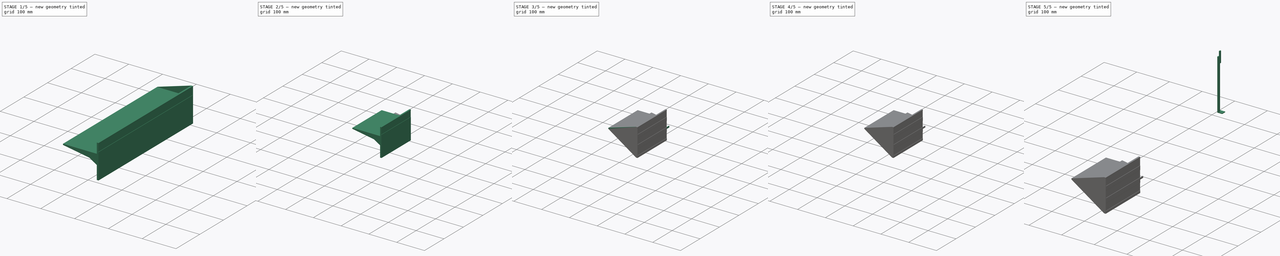
[diagram: build sequence overview — one tinted view per stage of 5, left to right]
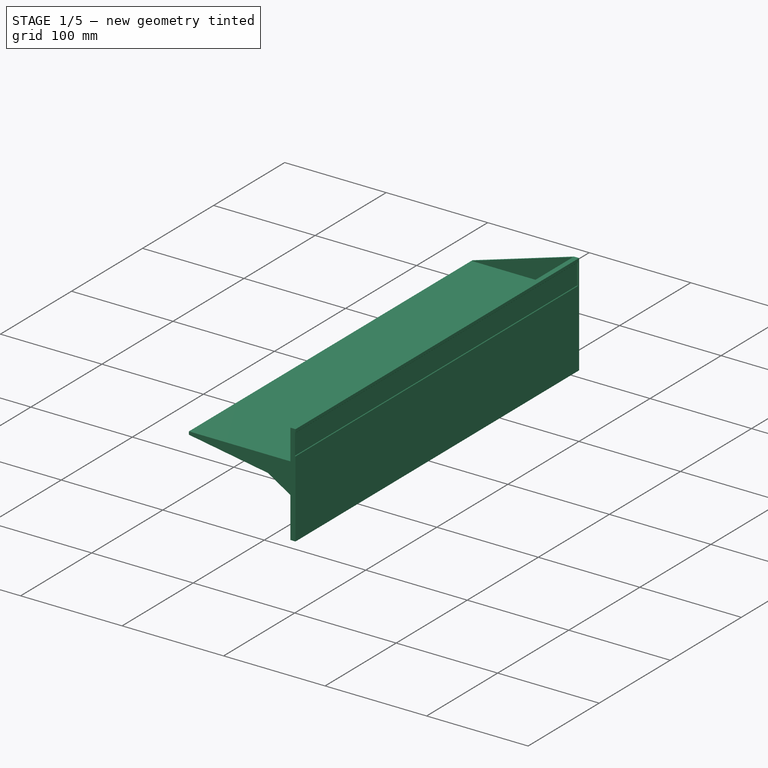
[diagram: stage 1 of 5 — iso view after this stage's code; geometry added in this stage tinted green]
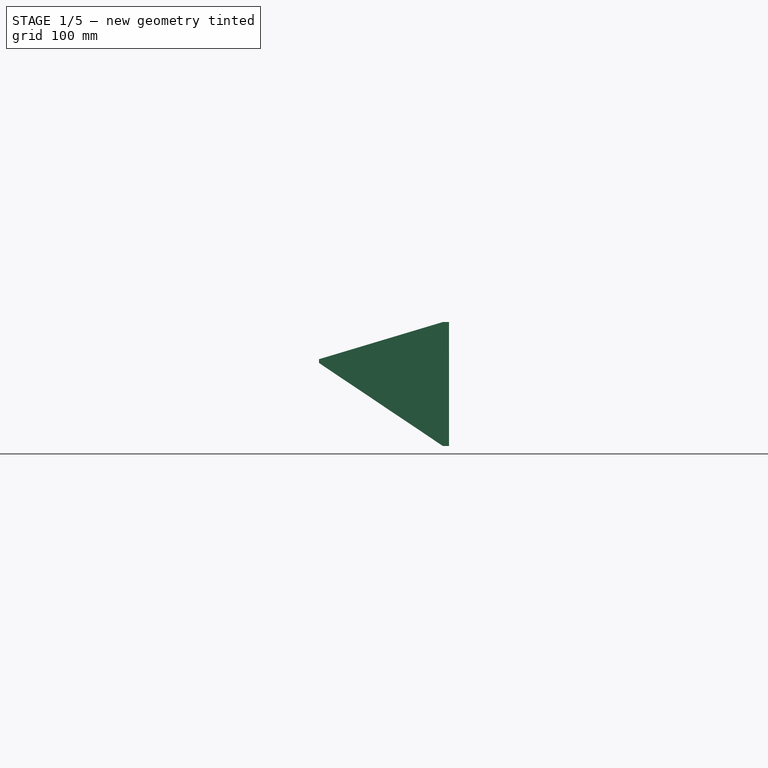
[diagram: stage 1 of 5 — front view after this stage's code; geometry added in this stage tinted green]
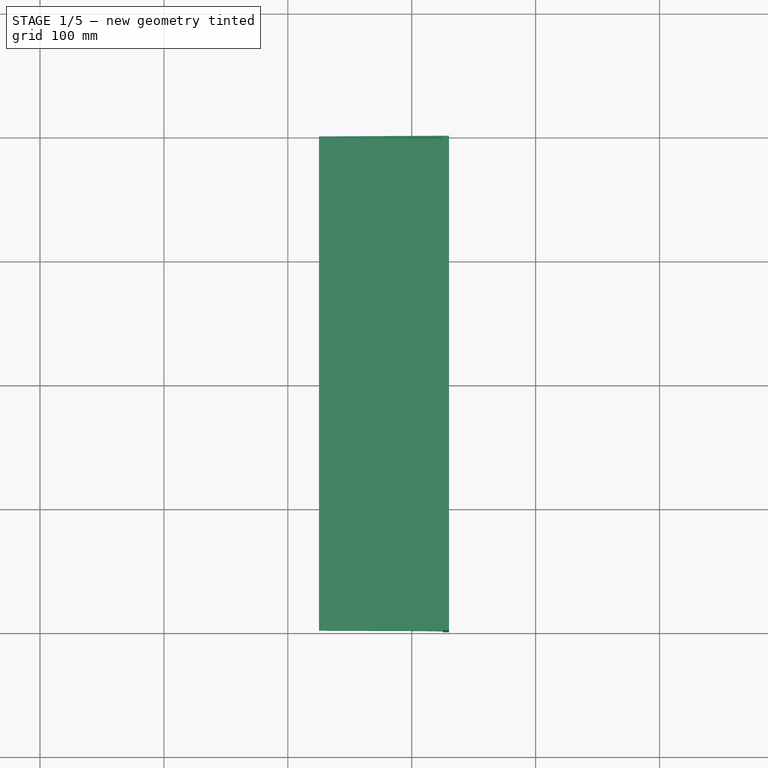
[diagram: stage 1 of 5 — top view after this stage's code; geometry added in this stage tinted green]
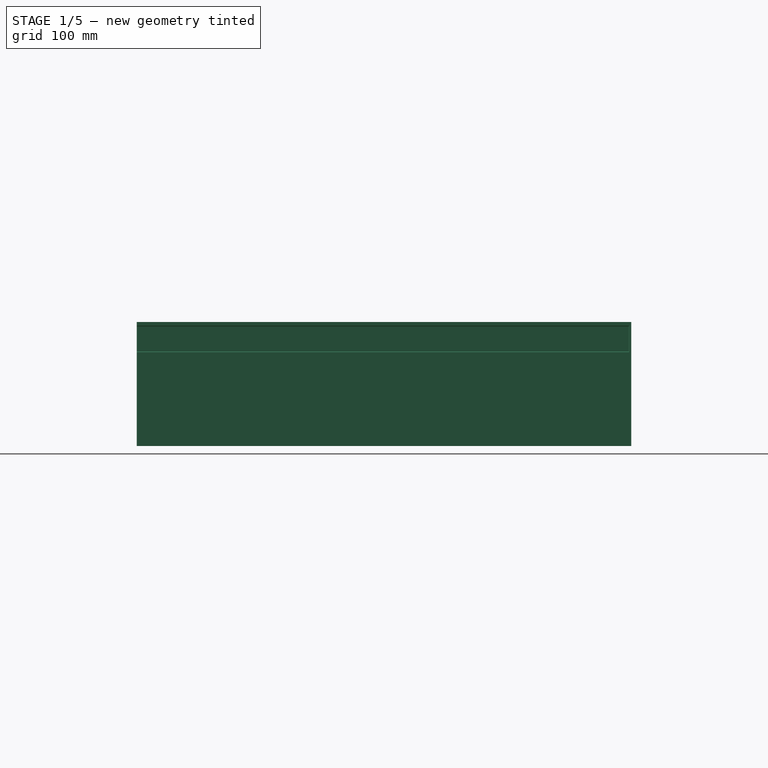
[diagram: stage 1 of 5 — right view after this stage's code; geometry added in this stage tinted green]
FCSTD DOCUMENT  (FreeCAD 1.1R40928 (Git))
Label: Полка
License: All rights reserved
LicenseURL: https://en.wikipedia.org/wiki/All_rights_reserved
objects: Sketcher::SketchObject×10, PartDesign::Pad×10, PartDesign::Chamfer×4, App::Point×3, PartDesign::Body×3, PartDesign::SubShapeBinder×1, Part::DatumPlane×1, PartDesign::Pocket×1, Measure::MeasureDistance×1, App::DocumentObjectGroup×1
note: 69 computed .brp shape members not serialized (recipe doc carries the construction recipe); baked Part::Feature solids carry a one-line shape summary decoded from their .brp

FEATURE [App::Point] Origin001  label="Начало координат"
  Role = Origin
FEATURE [Sketcher::SketchObject] Sketch
  ArcFitTolerance = 1e-06
  AttachmentSupport = -> [XZ_Plane]
  ExternalTypes = [0]
  FullyConstrained = false
  MakeInternals = false
  MapMode = 5
  Placement = pos=(0,0,0) rot=(1,0,0;1.5708rad)
  sketch-geometry (15):
    g0: LineSegment StartX=-74.8917 StartY=6.91952 StartZ=0 EndX=-74.8917 EndY=3.91952 EndZ=0
    g1: LineSegment StartX=25.1083 StartY=-63.0805 StartZ=0 EndX=30.1083 EndY=-63.0805 EndZ=0
    g2: LineSegment StartX=30.1083 StartY=-63.0805 StartZ=0 EndX=30.1083 EndY=12.6695 EndZ=0
    g3: LineSegment StartX=25.1083 StartY=36.9195 StartZ=0 EndX=25.1083 EndY=6.91952 EndZ=0
    g4: LineSegment StartX=25.1083 StartY=6.91952 StartZ=0 EndX=-74.8917 EndY=6.91952 EndZ=0
    g5: LineSegment StartX=25.1083 StartY=36.9195 StartZ=0 EndX=30.1083 EndY=36.9195 EndZ=0
    g6: LineSegment StartX=3.14686 StartY=-9.34703 StartZ=0 EndX=25.1083 EndY=-23.0805 EndZ=0
    g7: LineSegment [constr] StartX=25.1083 StartY=-13.0805 StartZ=0 EndX=3.14686 EndY=-9.34703 EndZ=0
    g8: LineSegment StartX=3.14686 StartY=-9.34703 StartZ=0 EndX=-74.8917 EndY=3.91952 EndZ=0
    g9: LineSegment [constr] StartX=25.1083 StartY=-13.0805 StartZ=0 EndX=25.1083 EndY=-23.0805 EndZ=0
    g10: LineSegment StartX=25.1083 StartY=-23.0805 StartZ=0 EndX=25.1083 EndY=-63.0805 EndZ=0
    g11: LineSegment StartX=29.6083 StartY=33.4195 StartZ=0 EndX=30.1083 EndY=33.9195 EndZ=0
    g12: LineSegment StartX=29.6083 StartY=33.4195 StartZ=0 EndX=29.6083 EndY=13.1695 EndZ=0
    g13: LineSegment StartX=29.6083 StartY=13.1695 StartZ=0 EndX=30.1083 EndY=12.6695 EndZ=0
    g14: LineSegment StartX=30.1083 StartY=33.9195 StartZ=0 EndX=30.1083 EndY=36.9195 EndZ=0
  constraints (41):
    c: Coincident(g10,g1)
    c: Coincident(g1,g2)
    c: Coincident(g3,g4)
    c: Coincident(g4,g0)
    c: Horizontal(g4)
    c: Vertical(g0)
    c: Vertical(g3)
    c: Horizontal(g1)
    c: Vertical(g9,g3)
    c: DistanceY(g0,g0) = 3
    c: DistanceX(g1,g1) = 5
    c: DistanceY(g9,g3) = 20
    c: Coincident(g7,g9)
    c: Coincident(g8,g0)
    c: DistanceX(g4,g4) = 100
    c: Coincident(g5,g3)
    c: Coincident(g14,g5)
    c: Equal(g5,g1)
    c: Horizontal(g5)
    c: DistanceY(g10,g9) = 50
    c: Distance(g3,g3) = 30
    c: Coincident(g7,g8)
    c: Coincident(g9,g10)
    c: Vertical(g9)
    c: Vertical(g10)
    c: Coincident(g7,g6)
    c: Coincident(g9,g6)
    c: DistanceY(g6,g7) = 10
    c: Parallel(g7,g8)
    c: Coincident(g11,g12)
    c: Coincident(g12,g13)
    c: DistanceX(g13,g13) = 0.5
    c: Angle(g13,g2) = 2.35619
    c: Vertical(g12)
    c: Angle(g2,g11) = 2.35619
    c: Coincident(g11,g14)
    c: Coincident(g13,g2)
    c: Vertical(g14)
    c: Vertical(g11,g2)
    c: DistanceY(g2,g11) = 21.25
    c: DistanceY(g14,g14) = 3
FEATURE [PartDesign::Pad] Pad
  Direction = (0,-1,0)
  Length = 399
  Length2 = 10
  Placement = pos=(0,0,0) rot=(1,0,0;1.5708rad)
  Profile = -> Sketch
  ReferenceAxis = -> Sketch [N_Axis]
  Refine = true
  Suppressed = false
  Type = 0
FEATURE [Sketcher::SketchObject] Sketch001
  ArcFitTolerance = 1e-06
  AttachmentSupport = -> [Pad]
  ExternalGeometry = -> [Pad]
  ExternalTypes = [0,0,0,0,0,0]
  FullyConstrained = true
  MakeInternals = false
  MapMode = 5
  Placement = pos=(0,-1.4e-15,0) rot=(-1,0,0;1.5708rad)
  sketch-geometry (6):
    g0: LineSegment StartX=-74.8917 StartY=-3.91952 StartZ=0 EndX=25.1083 EndY=63.0805 EndZ=0
    g1: LineSegment StartX=30.1083 StartY=63.0805 StartZ=0 EndX=30.1083 EndY=-36.9195 EndZ=0
    g2: LineSegment StartX=25.1083 StartY=-36.9195 StartZ=0 EndX=-74.8917 EndY=-6.91952 EndZ=0
    g3: LineSegment StartX=-74.8917 StartY=-6.91952 StartZ=0 EndX=-74.8917 EndY=-3.91952 EndZ=0
    g4: LineSegment StartX=25.1083 StartY=-36.9195 StartZ=0 EndX=30.1083 EndY=-36.9195 EndZ=0
    g5: LineSegment StartX=25.1083 StartY=63.0805 StartZ=0 EndX=30.1083 EndY=63.0805 EndZ=0
  constraints (12):
    c: Coincident(g2,g3)
    c: Coincident(g3,g0)
    c: Coincident(g2,g-4)
    c: Coincident(g-3,g0)
    c: Coincident(g1,g-8)
    c: Coincident(g-6,g2)
    c: Coincident(g4,g2)
    c: Coincident(g4,g1)
    c: Coincident(g1,g-7)
    c: Coincident(g-5,g0)
    c: Coincident(g5,g0)
    c: Coincident(g5,g1)
FEATURE [PartDesign::Pad] Pad001
  BaseFeature = -> Pad
  Direction = (0,1,2e-16)
  Length = 1.5
  Length2 = 10
  Placement = pos=(0,0,0) rot=(1,0,0;1.5708rad)
  Profile = -> Sketch001
  ReferenceAxis = -> Sketch001 [N_Axis]
  Refine = true
  Reversed = true
  Suppressed = false
  Type = 0
FEATURE [PartDesign::Chamfer] Chamfer
  Angle = 45
  Base = -> Pad001 [Edge2]
  BaseFeature = -> Pad001
  ChamferType = 0
  FlipDirection = false
  Placement = pos=(0,0,0) rot=(1,0,0;1.5708rad)
  Refine = true
  Size = 0.5
  Size2 = 1
  SupportTransform = false
  Suppressed = false
  UseAllEdges = false
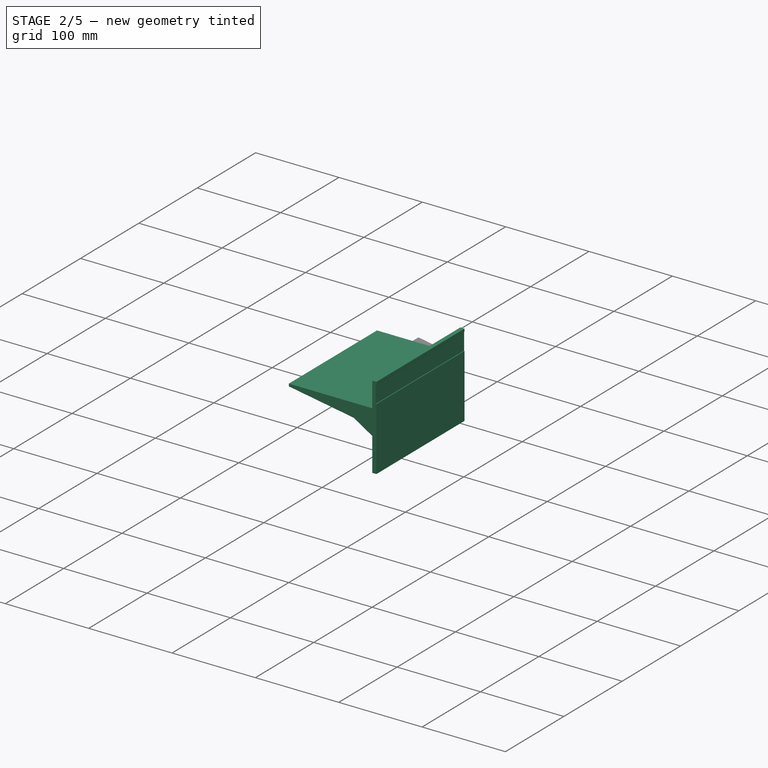
[diagram: stage 2 of 5 — iso view after this stage's code; geometry added in this stage tinted green]
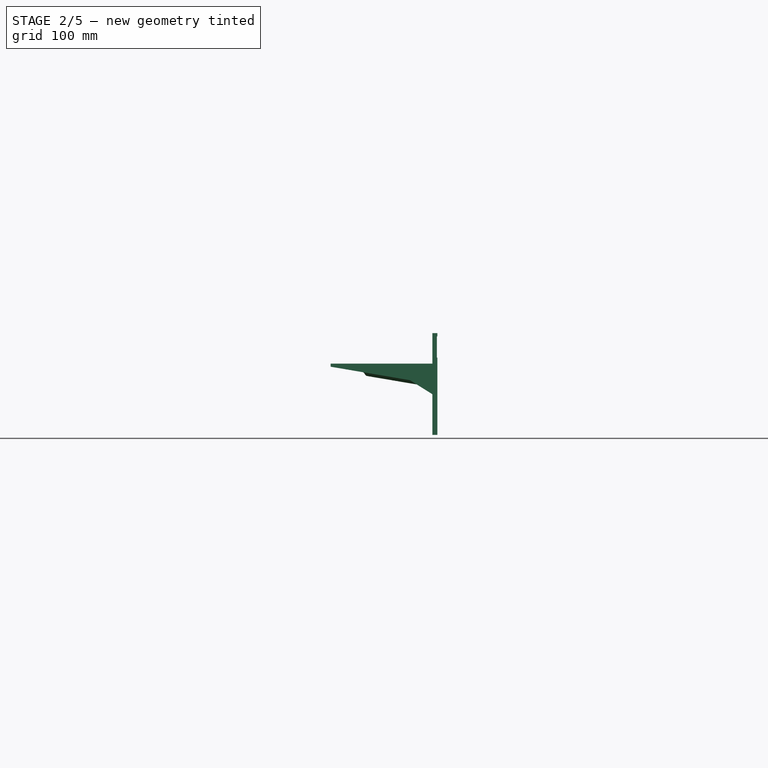
[diagram: stage 2 of 5 — front view after this stage's code; geometry added in this stage tinted green]
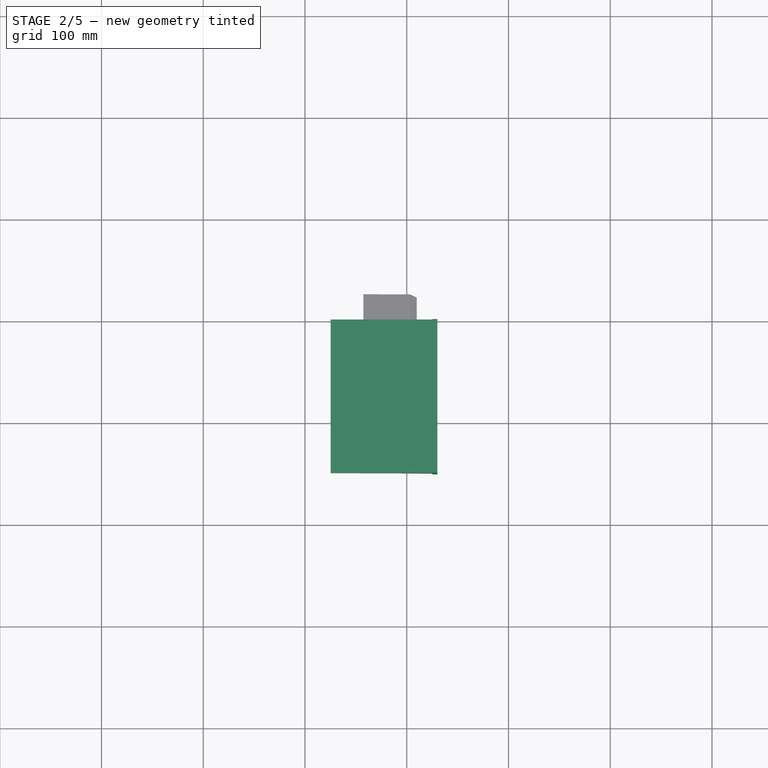
[diagram: stage 2 of 5 — top view after this stage's code; geometry added in this stage tinted green]
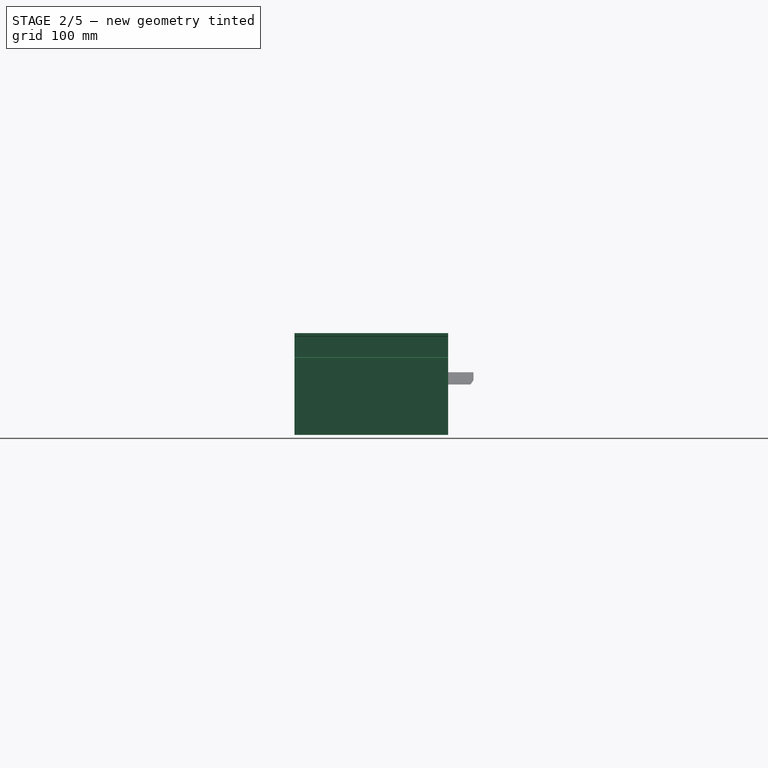
[diagram: stage 2 of 5 — right view after this stage's code; geometry added in this stage tinted green]
FEATURE [PartDesign::Body] Body  label="Тело"
  AllowCompound = false
  Group = -> [Sketch,Pad,Sketch001,Pad001,Chamfer]
  Origin = -> Origin
  Tip = -> Chamfer
FEATURE [App::Point] Origin003  label="Начало координат002"
  Role = Origin
FEATURE [PartDesign::SubShapeBinder] Binder
  BindCopyOnChange = 0
  BindMode = 0
  ClaimChildren = false
  Context = -> Body001 [Binder.]
  Fuse = false
  MakeFace = true
  OffsetFill = false
  OffsetIntersection = false
  OffsetJoinType = 0
  OffsetOpenResult = false
  PartialLoad = false
  Refine = true
  Relative = true
  Support = -> [Body[Chamfer.Face7]]
  _Version = 2
FEATURE [PartDesign::Pad] Pad002
  Direction = (0,-1,0)
  Length = 151
  Length2 = 10
  Profile = -> Binder
  Refine = true
  Suppressed = false
  Type = 0
FEATURE [Part::DatumPlane] DatumPlane
  AttachmentSupport = -> [Pad002]
  MapMode = 5
  Placement = pos=(0,-399,0) rot=(0,0.707107,0.707107;3.14159rad)
FEATURE [Sketcher::SketchObject] Sketch002
  ArcFitTolerance = 1e-06
  AttachmentSupport = -> [DatumPlane]
  ExternalGeometry = -> [Pad002]
  ExternalTypes = [1,0]
  FullyConstrained = false
  MakeInternals = false
  MapMode = 5
  Placement = pos=(0,-399,0) rot=(0,0.707107,0.707107;3.14159rad)
  sketch-geometry (4):
    g0: LineSegment StartX=-3.14686 StartY=-9.34703 StartZ=0 EndX=-9.82982 EndY=-13.5262 EndZ=0
    g1: LineSegment StartX=-9.82982 StartY=-13.5262 StartZ=0 EndX=42.7003 EndY=-4.59605 EndZ=0
    g2: LineSegment StartX=42.7003 StartY=-4.59605 StartZ=0 EndX=42.7003 EndY=-1.55301 EndZ=0
    g3: LineSegment StartX=42.7003 StartY=-1.55301 StartZ=0 EndX=-3.14686 EndY=-9.34703 EndZ=0
  constraints (10):
    c: Coincident(g-4,g0)
    c: PointOnObject(g0,g-4)
    c: Coincident(g0,g1)
    c: Coincident(g1,g2)
    c: Vertical(g2)
    c: Coincident(g3,g0)
    c: Parallel(g1,g3)
    c: Coincident(g2,g3)
    c: PointOnObject(g2,g-3)
    c: Distance(g3,g1) = 3
FEATURE [PartDesign::Pad] Pad003
  BaseFeature = -> Pad002
  Direction = (0,1,-2e-16)
  Length = 25
  Length2 = 15
  Profile = -> Sketch002
  ReferenceAxis = -> Sketch002 [N_Axis]
  Refine = true
  Suppressed = false
  Type = 4
FEATURE [PartDesign::Chamfer] Chamfer002
  Angle = 45
  Base = -> Pad003 [Edge51,Edge55,Edge53]
  BaseFeature = -> Pad003
  ChamferType = 0
  FlipDirection = false
  Refine = true
  Size = 2.99
  Size2 = 1
  SupportTransform = false
  Suppressed = false
  UseAllEdges = false
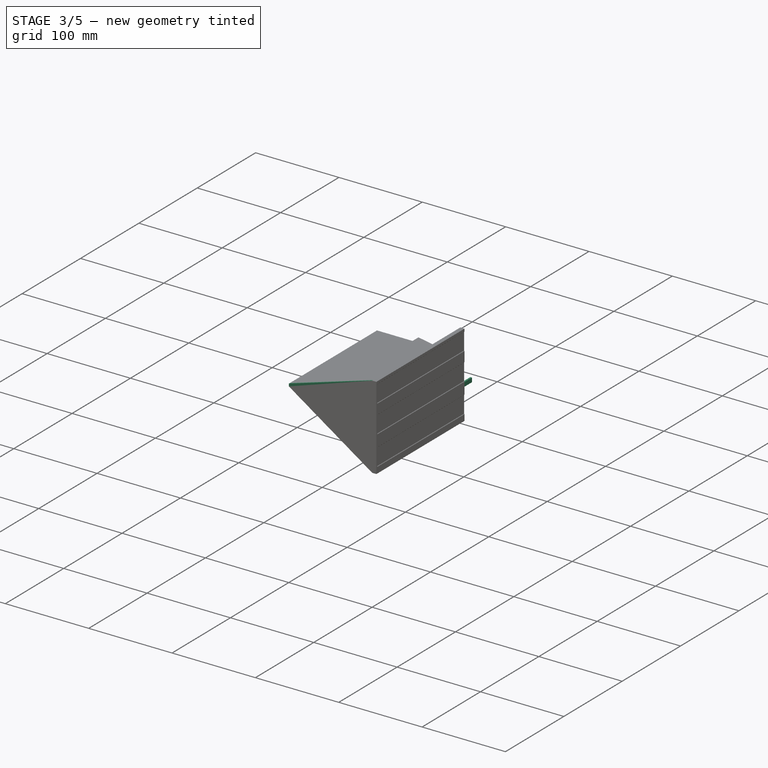
[diagram: stage 3 of 5 — iso view after this stage's code; geometry added in this stage tinted green]
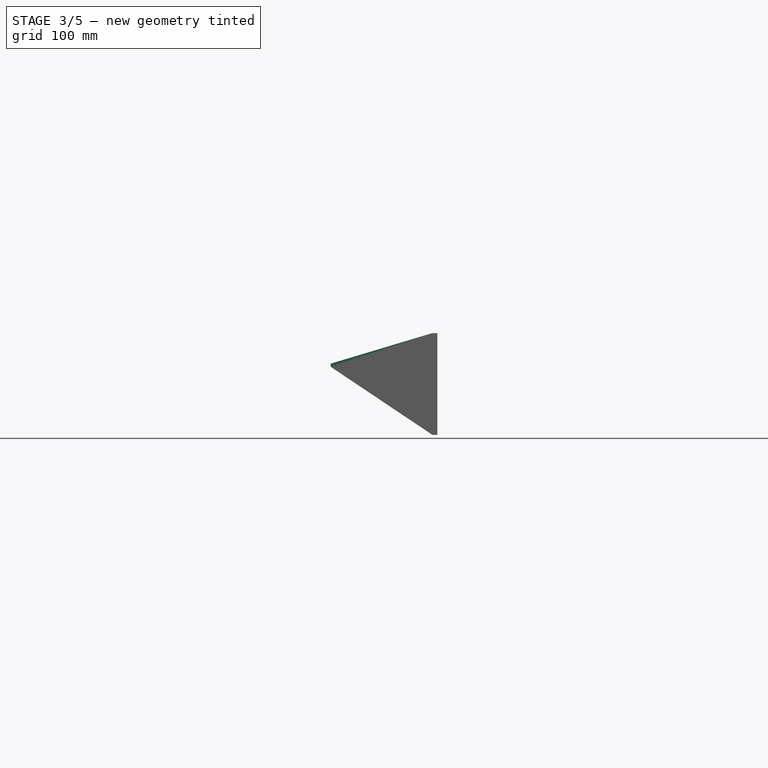
[diagram: stage 3 of 5 — front view after this stage's code; geometry added in this stage tinted green]
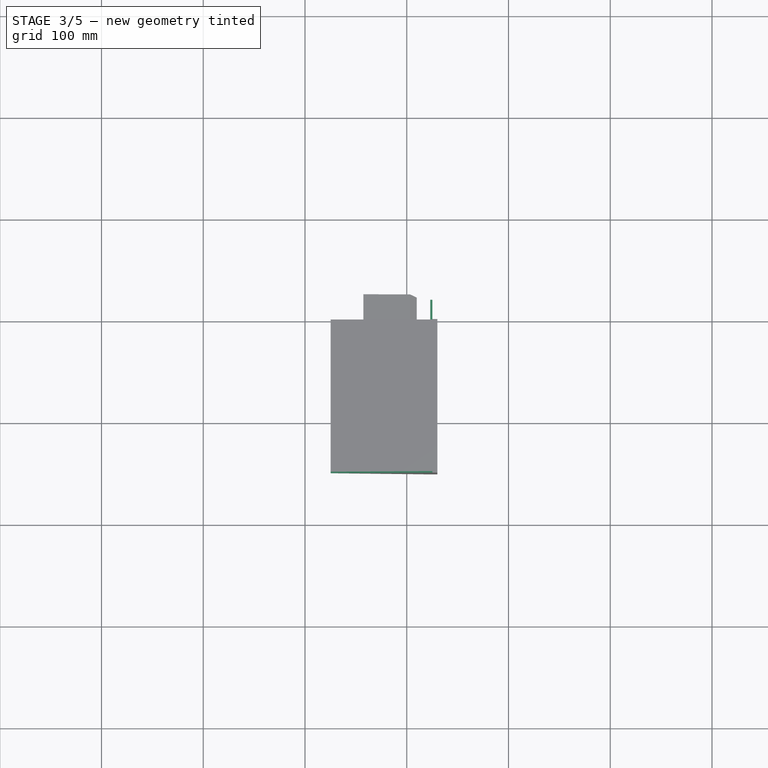
[diagram: stage 3 of 5 — top view after this stage's code; geometry added in this stage tinted green]
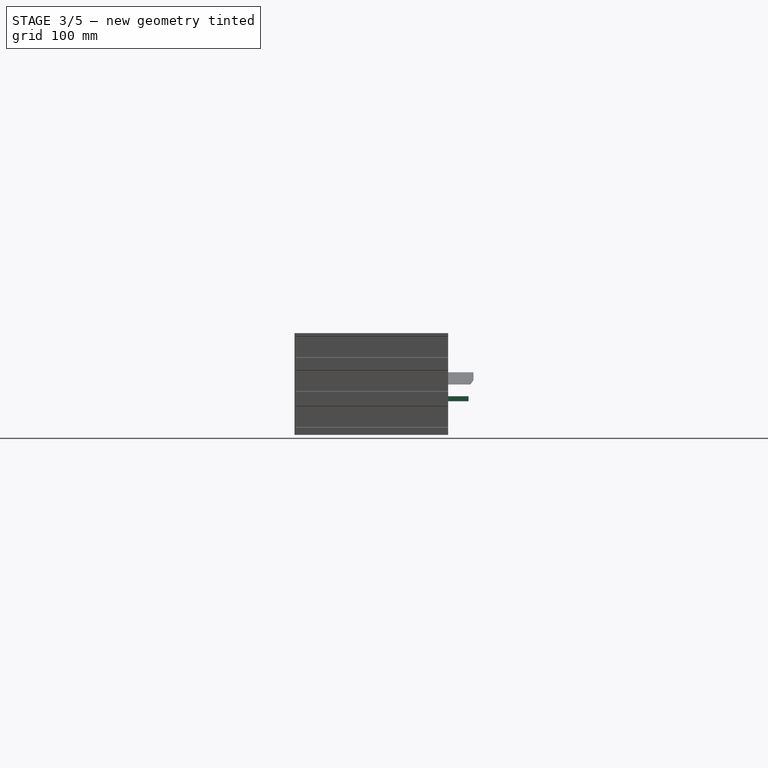
[diagram: stage 3 of 5 — right view after this stage's code; geometry added in this stage tinted green]
FEATURE [Sketcher::SketchObject] Sketch005
  ArcFitTolerance = 1e-06
  AttachmentSupport = -> [Chamfer002]
  ExternalGeometry = -> [Chamfer002]
  ExternalTypes = [0,0,0,0]
  FullyConstrained = true
  MakeInternals = false
  MapMode = 5
  Placement = pos=(0,-550,0) rot=(1,0,0;1.5708rad)
  sketch-geometry (3):
    g0: LineSegment StartX=-74.8917 StartY=6.91952 StartZ=0 EndX=25.1083 EndY=36.9195 EndZ=0
    g1: LineSegment StartX=30.1083 StartY=33.9195 StartZ=0 EndX=30.1083 EndY=-63.0805 EndZ=0
    g2: LineSegment StartX=25.1083 StartY=-63.0805 StartZ=0 EndX=-74.8917 EndY=3.91952 EndZ=0
  constraints (6):
    c: Coincident(g-5,g0)
    c: Coincident(g0,g-6)
    c: Coincident(g-3,g1)
    c: Coincident(g1,g-4)
    c: Coincident(g-4,g2)
    c: Coincident(g2,g-5)
FEATURE [PartDesign::Pad] Pad005
  BaseFeature = -> Chamfer002
  Direction = (0,-1,2e-16)
  Length = 1.5
  Length2 = 10
  Profile = -> Sketch005
  ReferenceAxis = -> Sketch005 [N_Axis]
  Refine = true
  Reversed = true
  Suppressed = false
  Type = 0
FEATURE [Sketcher::SketchObject] Sketch006
  ArcFitTolerance = 1e-06
  AttachmentSupport = -> [Pad005]
  ExternalGeometry = -> [Pad005]
  ExternalTypes = [0]
  FullyConstrained = true
  MakeInternals = false
  MapMode = 5
  Placement = pos=(0,-399,0) rot=(0,0.707107,0.707107;3.14159rad)
  sketch-geometry (4):
    g0: LineSegment StartX=-25.1083 StartY=-25.0805 StartZ=0 EndX=-25.1083 EndY=-30.0805 EndZ=0
    g1: LineSegment StartX=-25.1083 StartY=-30.0805 StartZ=0 EndX=-23.1083 EndY=-30.0805 EndZ=0
    g2: LineSegment StartX=-23.1083 StartY=-30.0805 StartZ=0 EndX=-23.1083 EndY=-25.0805 EndZ=0
    g3: LineSegment StartX=-23.1083 StartY=-25.0805 StartZ=0 EndX=-25.1083 EndY=-25.0805 EndZ=0
  constraints (12):
    c: PointOnObject(g0,g-3)
    c: PointOnObject(g0,g-3)
    c: Coincident(g0,g1)
    c: Coincident(g1,g2)
    c: Vertical(g2)
    c: Coincident(g2,g3)
    c: Coincident(g3,g0)
    c: Horizontal(g1)
    c: Horizontal(g3)
    c: DistanceX(g3,g3) = 2
    c: DistanceY(g2,g2) = 5
    c: DistanceY(g0,g-3) = 2
FEATURE [PartDesign::Pad] Pad006
  BaseFeature = -> Pad005
  Direction = (0,1,-2e-16)
  Length = 20
  Length2 = 20
  Profile = -> Sketch006
  ReferenceAxis = -> Sketch006 [N_Axis]
  Refine = true
  Suppressed = false
  Type = 4
FEATURE [PartDesign::Body] Body002  label="Тело002"
  AllowCompound = false
  Group = -> [Sketch007,Pad007,Sketch008,Pad008,Sketch009,Pad009]
  Origin = -> Origin004
  Tip = -> Pad009
FEATURE [Sketcher::SketchObject] Sketch010
  ArcFitTolerance = 1e-06
  AttachmentSupport = -> [Pad006]
  ExternalGeometry = -> [Pad006]
  ExternalTypes = [0,0,0,0,0]
  FullyConstrained = false
  MakeInternals = false
  MapMode = 5
  Placement = pos=(0,-399,0) rot=(0,0.707107,0.707107;3.14159rad)
  sketch-geometry (8):
    g0: LineSegment StartX=-30.1083 StartY=0.677209 StartZ=0 EndX=-29.6083 EndY=0.177209 EndZ=0
    g1: LineSegment StartX=-29.6083 StartY=0.177209 StartZ=0 EndX=-29.6083 EndY=-20.0728 EndZ=0
    g2: LineSegment StartX=-29.6083 StartY=-20.0728 StartZ=0 EndX=-30.1083 EndY=-20.5728 EndZ=0
    g3: LineSegment StartX=-30.1083 StartY=-20.5728 StartZ=0 EndX=-30.1083 EndY=0.677209 EndZ=0
    g4: LineSegment StartX=-30.1083 StartY=-34.6108 StartZ=0 EndX=-29.6083 EndY=-35.1108 EndZ=0
    g5: LineSegment StartX=-29.6083 StartY=-35.1108 StartZ=0 EndX=-29.6083 EndY=-55.3608 EndZ=0
    g6: LineSegment StartX=-29.6083 StartY=-55.3608 StartZ=0 EndX=-30.1083 EndY=-55.8608 EndZ=0
    g7: LineSegment StartX=-30.1083 StartY=-55.8608 StartZ=0 EndX=-30.1083 EndY=-34.6108 EndZ=0
  constraints (22):
    c: PointOnObject(g0,g-3)
    c: Coincident(g0,g1)
    c: Coincident(g1,g2)
    c: PointOnObject(g2,g-3)
    c: Coincident(g2,g3)
    c: Coincident(g3,g0)
    c: PointOnObject(g4,g-3)
    c: Coincident(g4,g5)
    c: Coincident(g5,g6)
    c: PointOnObject(g6,g-3)
    c: Coincident(g6,g7)
    c: Coincident(g7,g4)
    c: Equal(g-5,g0)
    c: Equal(g0,g4)
    c: Equal(g4,g6)
    c: Equal(g2,g0)
    c: Parallel(g0,g-6)
    c: Parallel(g-6,g4)
    c: Parallel(g6,g-5)
    c: Parallel(g2,g-5)
    c: Equal(g1,g-7)
    c: Equal(g5,g1)
FEATURE [PartDesign::Pocket] Pocket
  BaseFeature = -> Pad006
  Direction = (0,-1,2e-16)
  Length = 0
  Length2 = 5
  Profile = -> Sketch010
  ReferenceAxis = -> Sketch010 [N_Axis]
  Refine = true
  Suppressed = false
  Type = 3
  UpToFace = -> Pad006 [Face33]
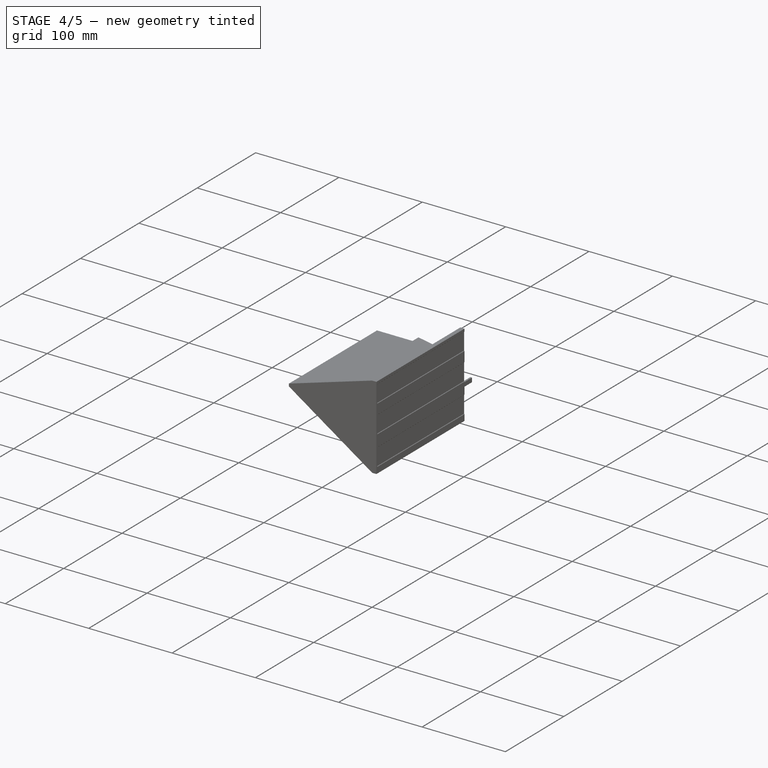
[diagram: stage 4 of 5 — iso view after this stage's code; geometry added in this stage tinted green]
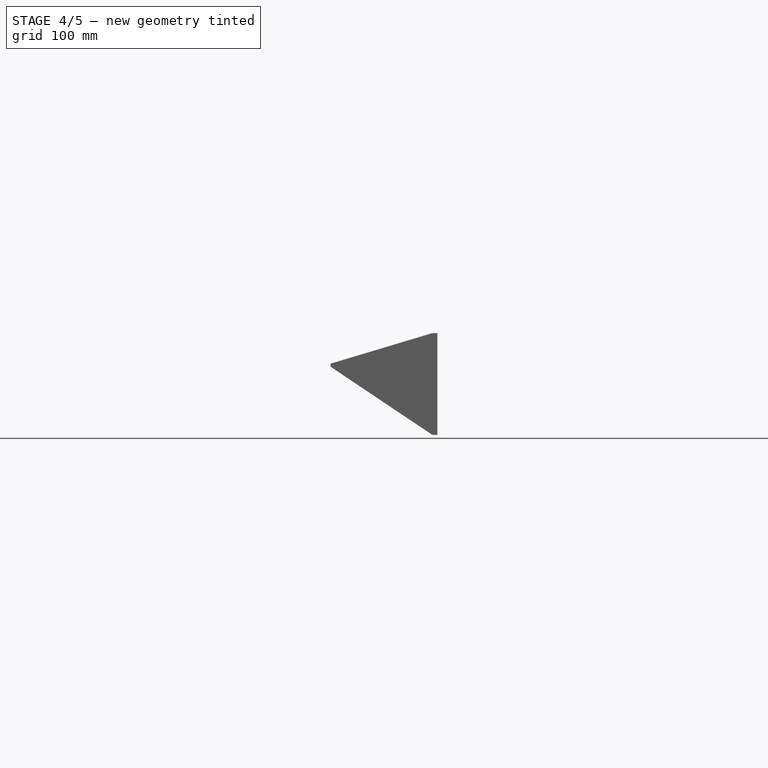
[diagram: stage 4 of 5 — front view after this stage's code; geometry added in this stage tinted green]
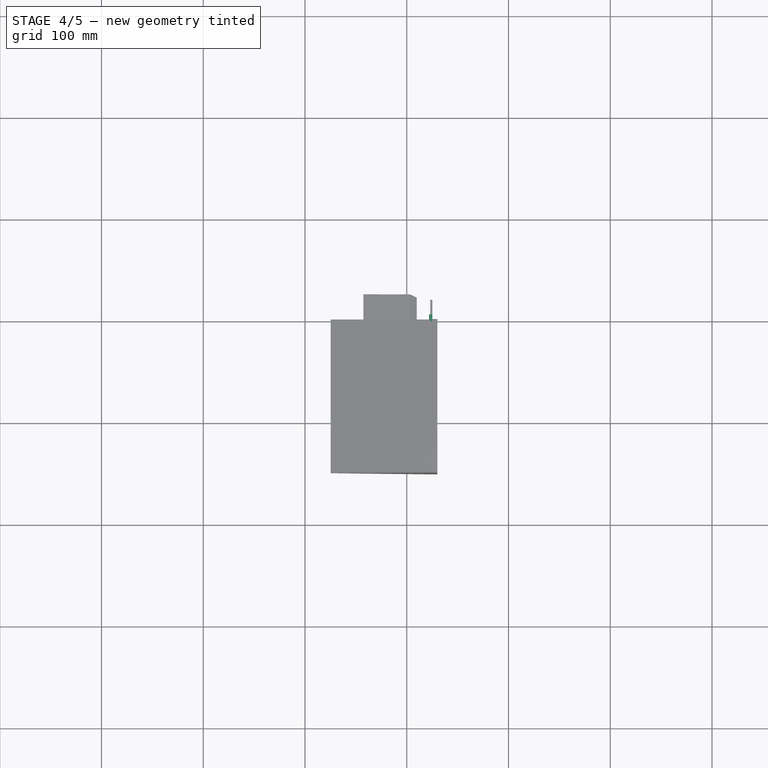
[diagram: stage 4 of 5 — top view after this stage's code; geometry added in this stage tinted green]
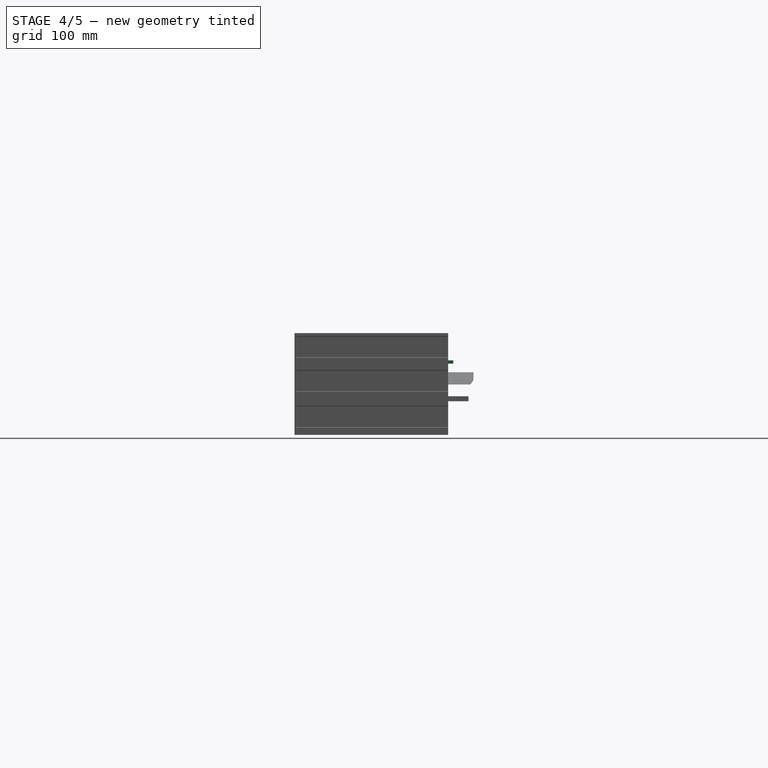
[diagram: stage 4 of 5 — right view after this stage's code; geometry added in this stage tinted green]
FEATURE [PartDesign::Chamfer] Chamfer003
  Angle = 45
  Base = -> Pocket [Edge63]
  BaseFeature = -> Pocket
  ChamferType = 0
  FlipDirection = false
  Refine = true
  Size = 1.95
  Size2 = 1
  SupportTransform = false
  Suppressed = false
  UseAllEdges = false
FEATURE [Sketcher::SketchObject] Sketch011
  ArcFitTolerance = 1e-06
  AttachmentSupport = -> [Chamfer003]
  ExternalGeometry = -> [Chamfer003]
  ExternalTypes = [0,0]
  FullyConstrained = true
  MakeInternals = false
  MapMode = 5
  Placement = pos=(0,-399,0) rot=(0,0.707107,0.707107;3.14159rad)
  sketch-geometry (4):
    g0: LineSegment StartX=-25.1083 StartY=6.91952 StartZ=0 EndX=-21.8583 EndY=6.91952 EndZ=0
    g1: LineSegment StartX=-21.8583 StartY=6.91952 StartZ=0 EndX=-21.8583 EndY=10.1695 EndZ=0
    g2: LineSegment StartX=-21.8583 StartY=10.1695 StartZ=0 EndX=-25.1083 EndY=10.1695 EndZ=0
    g3: LineSegment StartX=-25.1083 StartY=10.1695 StartZ=0 EndX=-25.1083 EndY=6.91952 EndZ=0
  constraints (11):
    c: Coincident(g0,g1)
    c: Coincident(g1,g2)
    c: Coincident(g2,g3)
    c: Coincident(g3,g0)
    c: Horizontal(g0)
    c: Horizontal(g2)
    c: Vertical(g1)
    c: Vertical(g3)
    c: Coincident(g0,g-4)
    c: Equal(g1,g2)
    c: DistanceX(g2,g2) = 3.25
FEATURE [PartDesign::Pad] Pad010
  BaseFeature = -> Chamfer003
  Direction = (0,1,0)
  Length = 5
  Length2 = 2.5
  Profile = -> Sketch011
  ReferenceAxis = -> Sketch011 [N_Axis]
  Refine = true
  Suppressed = false
  Type = 4
FEATURE [PartDesign::Chamfer] Chamfer004
  Angle = 45
  Base = -> Pad010 [Edge124,Edge126]
  BaseFeature = -> Pad010
  ChamferType = 0
  FlipDirection = false
  Refine = true
  Size = 2.5
  Size2 = 1
  SupportTransform = false
  Suppressed = false
  UseAllEdges = false
FEATURE [PartDesign::Body] Body001  label="Тело001"
  AllowCompound = false
  Group = -> [Binder,Pad002,DatumPlane,Sketch002,Pad003,Chamfer002,Sketch005,Pad005,Sketch006,Pad006,Sketch010,Pocket,Chamfer003,Sketch011,Pad010,Chamfer004]
  Origin = -> Origin002
  Tip = -> Chamfer004
FEATURE [Measure::MeasureDistance] Distance  label="Distance: 5,00 mm"
  Distance = 5
  DistanceX = 5
  DistanceY = 0
  DistanceZ = 0
  Element1 = -> Body001 [Pad006.Edge21]
  Element2 = -> Body001 [Pad006.Edge23]
  Position1 = (25.1083,-399,-63.0805)
  Position2 = (30.1083,-399,-63.0805)
FEATURE [App::DocumentObjectGroup] Measurements
  Group = -> [Distance]
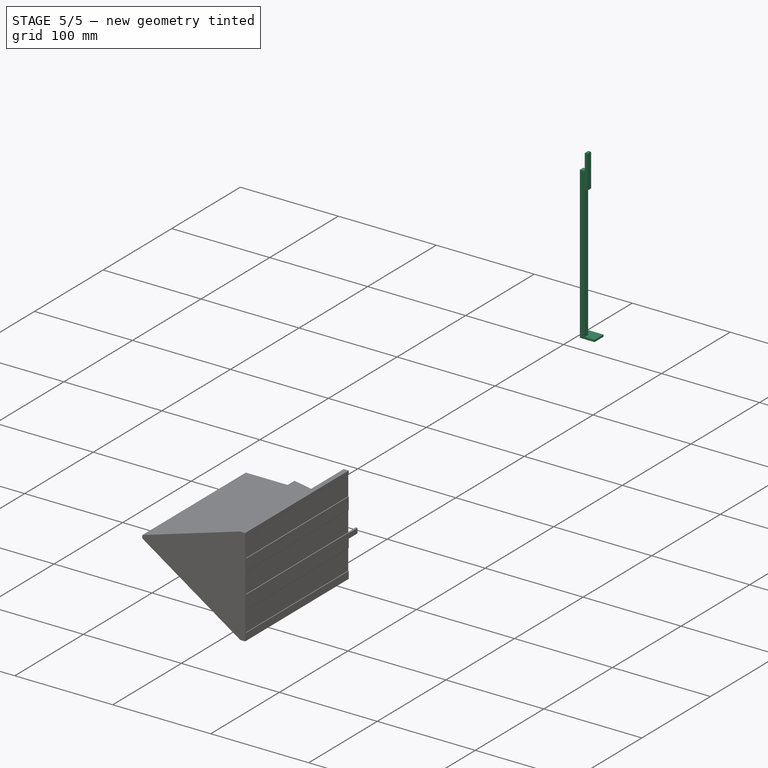
[diagram: stage 5 of 5 — iso view after this stage's code; geometry added in this stage tinted green]
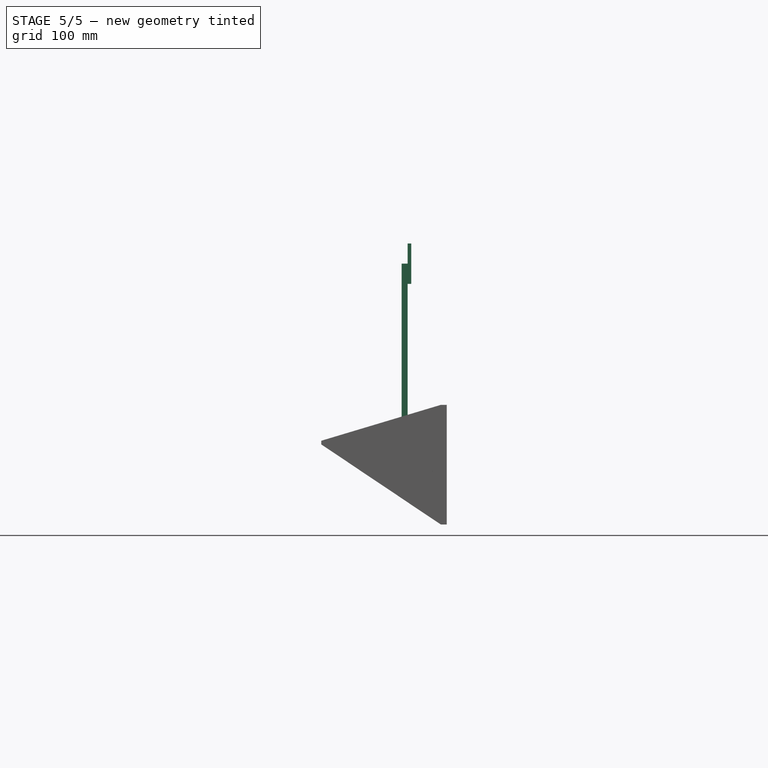
[diagram: stage 5 of 5 — front view after this stage's code; geometry added in this stage tinted green]
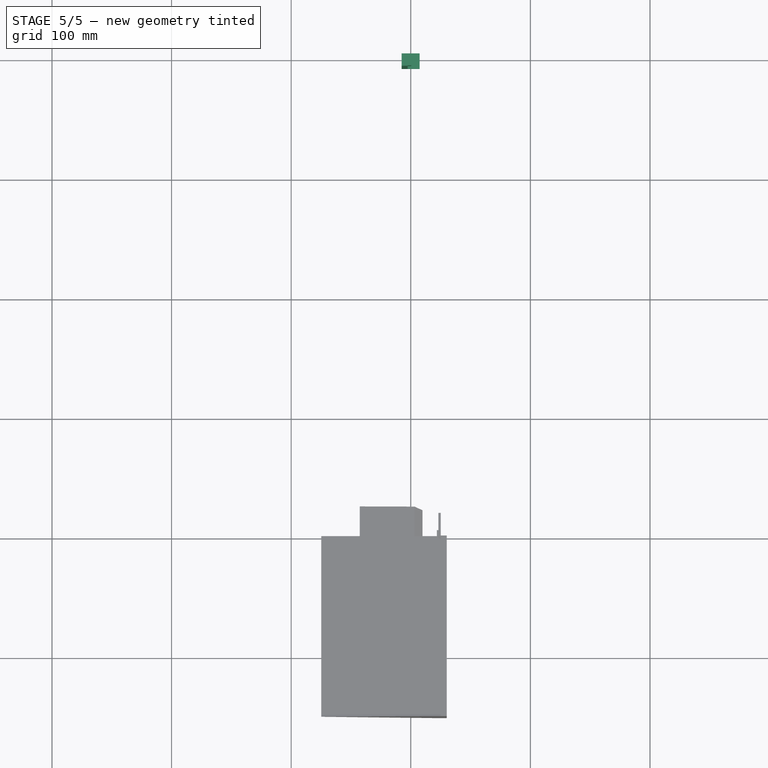
[diagram: stage 5 of 5 — top view after this stage's code; geometry added in this stage tinted green]
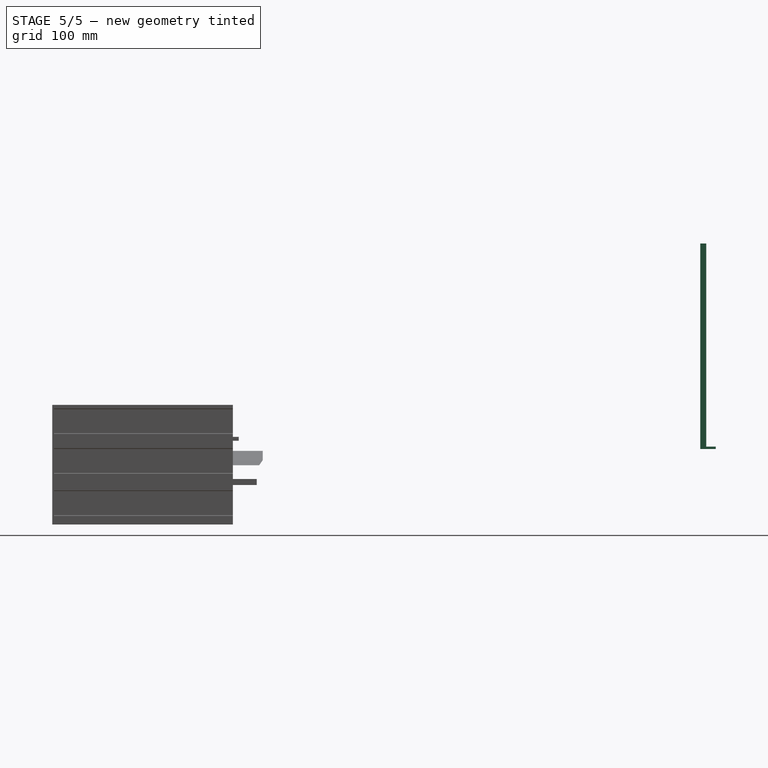
[diagram: stage 5 of 5 — right view after this stage's code; geometry added in this stage tinted green]
FEATURE [App::Point] Origin005  label="Начало координат004"
  Role = Origin
FEATURE [Sketcher::SketchObject] Sketch007
  ArcFitTolerance = 1e-06
  AttachmentSupport = -> [XY_Plane002]
  ExternalTypes = [0]
  FullyConstrained = false
  MakeInternals = false
  MapMode = 5
  sketch-geometry (4):
    g0: LineSegment StartX=7.39362 StartY=4.80521 StartZ=0 EndX=-7.60638 EndY=4.80521 EndZ=0
    g1: LineSegment StartX=-7.60638 StartY=4.80521 StartZ=0 EndX=-7.60638 EndY=-8.19479 EndZ=0
    g2: LineSegment StartX=-7.60638 StartY=-8.19479 StartZ=0 EndX=7.39362 EndY=-8.19479 EndZ=0
    g3: LineSegment StartX=7.39362 StartY=-8.19479 StartZ=0 EndX=7.39362 EndY=4.80521 EndZ=0
  constraints (10):
    c: Coincident(g0,g1)
    c: Coincident(g1,g2)
    c: Coincident(g2,g3)
    c: Coincident(g3,g0)
    c: Horizontal(g0)
    c: Horizontal(g2)
    c: Vertical(g1)
    c: Vertical(g3)
    c: DistanceX(g0,g0) = 15
    c: DistanceY(g3,g3) = 13
FEATURE [PartDesign::Pad] Pad007
  Direction = (0,0,1)
  Length = 2
  Length2 = 10
  Profile = -> Sketch007
  ReferenceAxis = -> Sketch007 [N_Axis]
  Refine = true
  Suppressed = false
  Type = 0
FEATURE [Sketcher::SketchObject] Sketch008
  ArcFitTolerance = 1e-06
  AttachmentSupport = -> [Pad007]
  ExternalGeometry = -> [Pad007]
  ExternalTypes = [0,0]
  FullyConstrained = true
  MakeInternals = false
  MapMode = 5
  Placement = pos=(0,0,2) rot=(0,0,1;0rad)
  sketch-geometry (4):
    g0: LineSegment StartX=-7.60638 StartY=-3.19479 StartZ=0 EndX=-7.60638 EndY=-8.19479 EndZ=0
    g1: LineSegment StartX=-7.60638 StartY=-8.19479 StartZ=0 EndX=-2.60638 EndY=-8.19479 EndZ=0
    g2: LineSegment StartX=-2.60638 StartY=-8.19479 StartZ=0 EndX=-2.60638 EndY=-3.19479 EndZ=0
    g3: LineSegment StartX=-2.60638 StartY=-3.19479 StartZ=0 EndX=-7.60638 EndY=-3.19479 EndZ=0
  constraints (11):
    c: Coincident(g0,g1)
    c: Coincident(g1,g2)
    c: Coincident(g2,g3)
    c: Coincident(g3,g0)
    c: Vertical(g0)
    c: Vertical(g2)
    c: Horizontal(g1)
    c: Horizontal(g3)
    c: DistanceX(g3,g3) = 5
    c: Equal(g3,g2)
    c: Coincident(g0,g-4)
FEATURE [PartDesign::Pad] Pad008
  BaseFeature = -> Pad007
  Direction = (0,0,1)
  Length = 153
  Length2 = 10
  Profile = -> Sketch008
  ReferenceAxis = -> Sketch008 [N_Axis]
  Refine = true
  Suppressed = false
  Type = 0
FEATURE [Sketcher::SketchObject] Sketch009
  ArcFitTolerance = 1e-06
  AttachmentSupport = -> [Pad008]
  ExternalGeometry = -> [Pad008]
  ExternalTypes = [0]
  FullyConstrained = true
  MakeInternals = false
  MapMode = 5
  Placement = pos=(-2.60638,0,0) rot=(0.57735,0.57735,0.57735;2.0944rad)
  sketch-geometry (4):
    g0: LineSegment StartX=-8.19479 StartY=171.87 StartZ=0 EndX=-8.19479 EndY=138.13 EndZ=0
    g1: LineSegment StartX=-8.19479 StartY=138.13 StartZ=0 EndX=-3.19479 EndY=138.13 EndZ=0
    g2: LineSegment StartX=-3.19479 StartY=138.13 StartZ=0 EndX=-3.19479 EndY=171.87 EndZ=0
    g3: LineSegment StartX=-3.19479 StartY=171.87 StartZ=0 EndX=-8.19479 EndY=171.87 EndZ=0
  constraints (11):
    c: Coincident(g0,g1)
    c: Coincident(g1,g2)
    c: Coincident(g2,g3)
    c: Coincident(g3,g0)
    c: Vertical(g0)
    c: Vertical(g2)
    c: Horizontal(g1)
    c: Horizontal(g3)
    c: DistanceY(g2,g2) = 33.74
    c: PointOnObject(g-3,g0)
    c: Symmetric(g1,g2,g-3)
FEATURE [PartDesign::Pad] Pad009
  BaseFeature = -> Pad008
  Direction = (1,0,0)
  Length = 3
  Length2 = 10
  Profile = -> Sketch009
  ReferenceAxis = -> Sketch009 [N_Axis]
  Refine = true
  Suppressed = false
  Type = 0
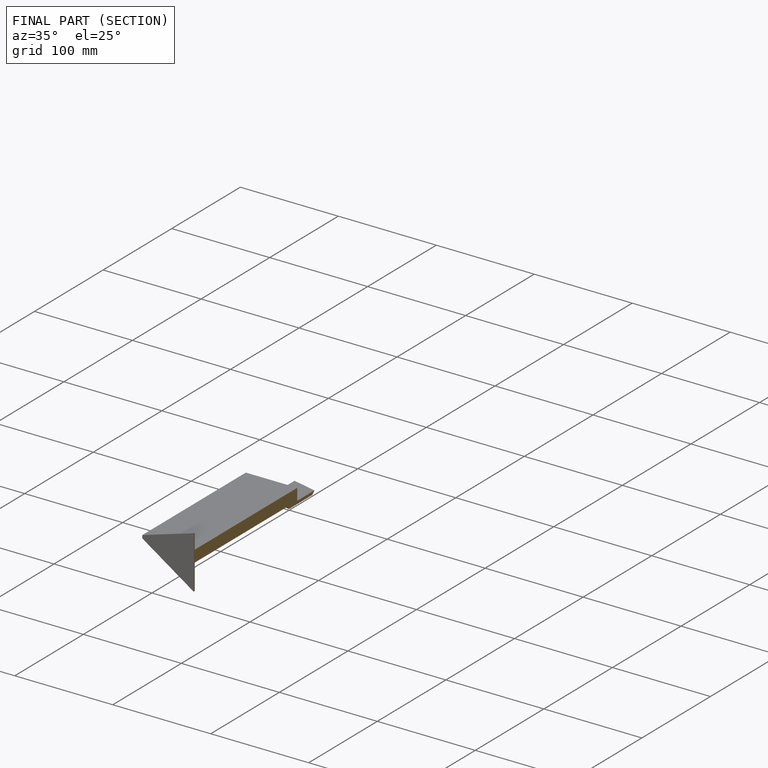
[diagram: finished part — half-section view (interior)]
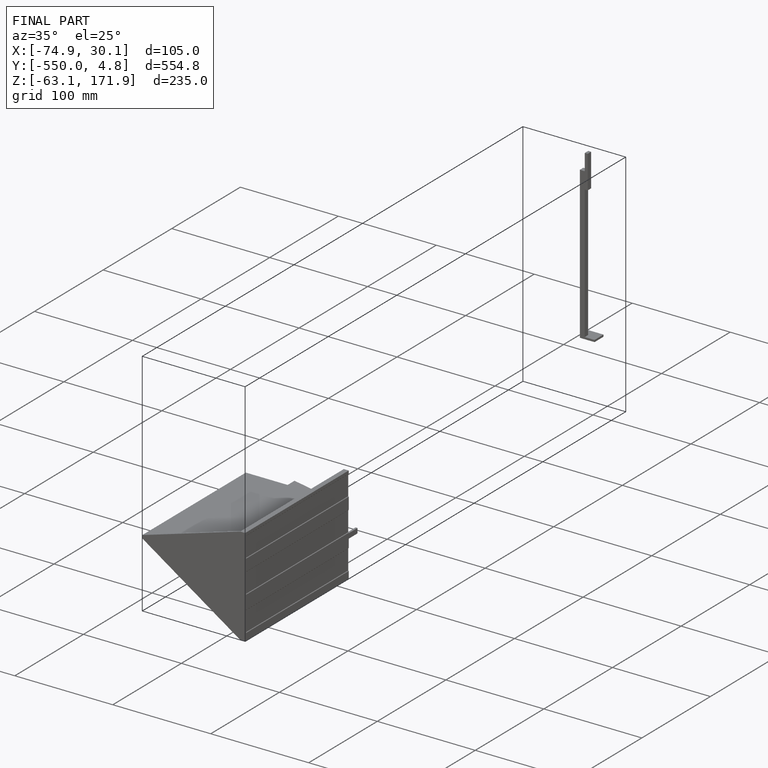
[diagram: finished part — iso view with bounding-box wireframe]
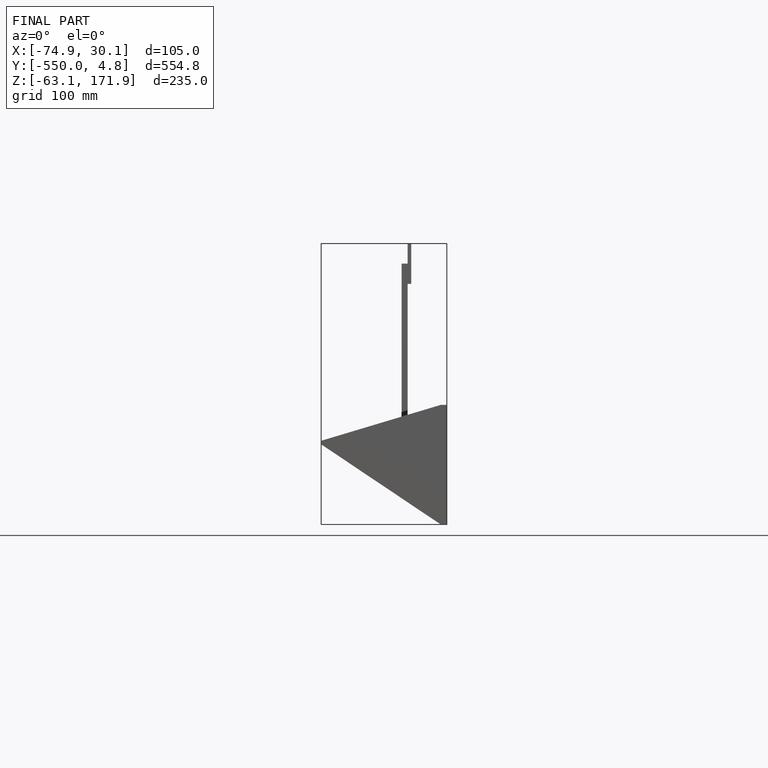
[diagram: finished part — front view with bounding-box wireframe]
